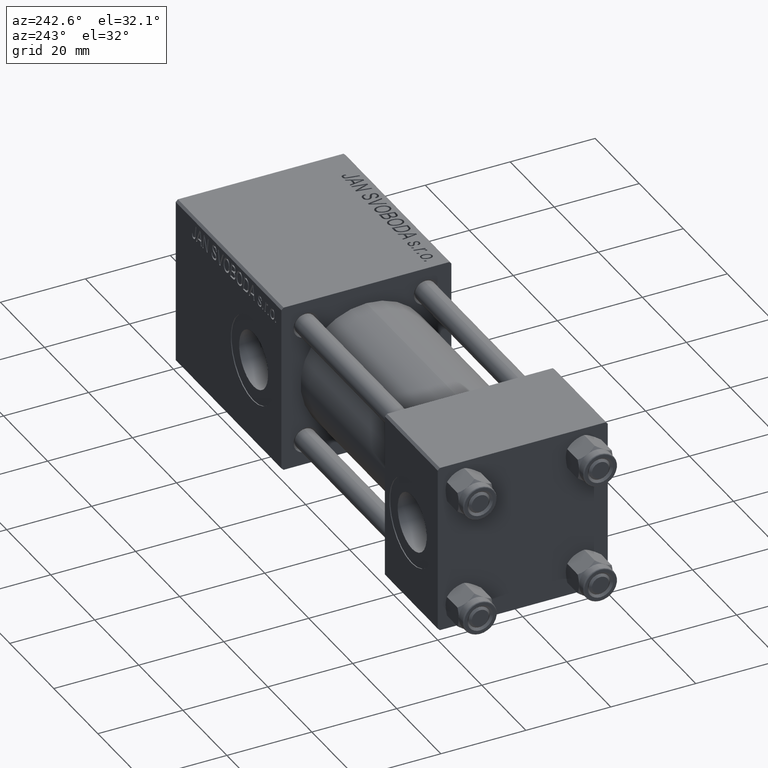
[diagram: clean part render]
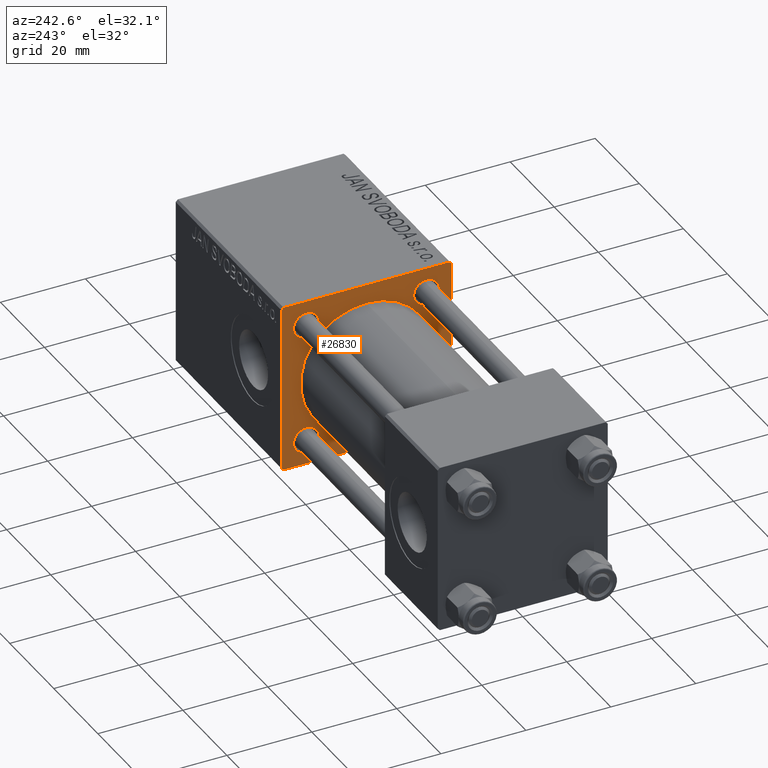
[diagram: same view with one face highlighted and labeled with its STEP entity id]
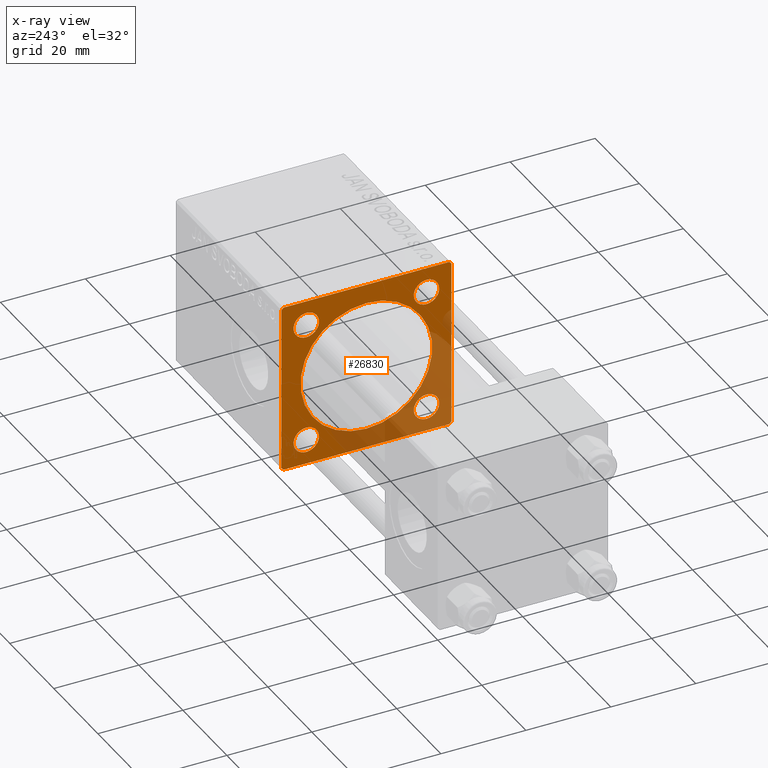
[diagram: x-ray of the same camera — body ghosted, the highlighted face saturated]
A machine part, auxiliary view. The second image highlights one B-rep face of the part: STEP entity #26830.
The next image is the same camera in x-ray: the body ghosted, the highlighted face saturated — about 32% of this face is hidden behind the body in this view.
In plain terms, the highlighted planar face has unit normal (-1, 0, 0).
Its self-contained STEP definition (entity closure, byte-faithful):
#245 = CARTESIAN_POINT ( 'NONE',  ( 71.00000000000001421, 14.15000000000000036, -11.14999999999999680 ) ) ;
#595 = CARTESIAN_POINT ( 'NONE',  ( 71.00000000000001421, -14.15000000000000036, -11.14999999999999680 ) ) ;
#1058 = CIRCLE ( 'NONE', #13248, 3.000000000000004441 ) ;
#1452 = CARTESIAN_POINT ( 'NONE',  ( 71.00000000000001421, -20.00000000000000000, -19.50000000000001066 ) ) ;
#1615 = CIRCLE ( 'NONE', #20325, 3.000000000000004441 ) ;
#1663 = VERTEX_POINT ( 'NONE', #39674 ) ;
#1784 = CARTESIAN_POINT ( 'NONE',  ( 71.00000000000001421, 19.99999999999999645, -20.00000000000000000 ) ) ;
#1997 = ORIENTED_EDGE ( 'NONE', *, *, #18133, .T. ) ;
#2181 = DIRECTION ( 'NONE',  ( -1.000000000000000000, 0.000000000000000000, -0.000000000000000000 ) ) ;
#2630 = AXIS2_PLACEMENT_3D ( 'NONE', #37027, #33974, #5997 ) ;
#2813 = VERTEX_POINT ( 'NONE', #16467 ) ;
#3227 = CARTESIAN_POINT ( 'NONE',  ( 71.00000000000001421, -7.038826752868131828E-16, -15.50000000000000000 ) ) ;
#3256 = AXIS2_PLACEMENT_3D ( 'NONE', #3717, #35001, #42118 ) ;
#3403 = AXIS2_PLACEMENT_3D ( 'NONE', #40737, #18108, #25751 ) ;
#3485 = CARTESIAN_POINT ( 'NONE',  ( 71.00000000000001421, 14.15000000000000036, 17.15000000000000568 ) ) ;
#3498 = VERTEX_POINT ( 'NONE', #45748 ) ;
#3518 = ORIENTED_EDGE ( 'NONE', *, *, #48919, .T. ) ;
#3633 = EDGE_CURVE ( 'NONE', #21033, #11726, #39462, .T. ) ;
#3664 = CARTESIAN_POINT ( 'NONE',  ( 71.00000000000001421, 19.99999999999999645, 20.00000000000000000 ) ) ;
#3717 = CARTESIAN_POINT ( 'NONE',  ( 71.00000000000001421, -2.602085213965210642E-15, 0.000000000000000000 ) ) ;
#3718 = VERTEX_POINT ( 'NONE', #3227 ) ;
#4088 = CARTESIAN_POINT ( 'NONE',  ( 71.00000000000001421, 19.74999999999971578, 19.75000000000026290 ) ) ;
#4093 = VECTOR ( 'NONE', #32819, 1000.000000000000000 ) ;
#4610 = VERTEX_POINT ( 'NONE', #29028 ) ;
#4685 = ORIENTED_EDGE ( 'NONE', *, *, #28994, .T. ) ;
#5900 = CIRCLE ( 'NONE', #2630, 3.000000000000004441 ) ;
#5997 = DIRECTION ( 'NONE',  ( 0.000000000000000000, 0.000000000000000000, 1.000000000000000000 ) ) ;
#6253 = FACE_BOUND ( 'NONE', #11671, .T. ) ;
#7206 = CARTESIAN_POINT ( 'NONE',  ( 71.00000000000001421, 19.99999999999999645, 20.00000000000000000 ) ) ;
#7416 = CIRCLE ( 'NONE', #31784, 3.000000000000004441 ) ;
#8467 = CARTESIAN_POINT ( 'NONE',  ( 71.00000000000001421, -19.74999999999973710, 19.75000000000028422 ) ) ;
#8661 = VERTEX_POINT ( 'NONE', #15104 ) ;
#8760 = VERTEX_POINT ( 'NONE', #595 ) ;
#8781 = EDGE_CURVE ( 'NONE', #20190, #1663, #31876, .T. ) ;
#9008 = CARTESIAN_POINT ( 'NONE',  ( 71.00000000000001421, -20.00000000000000355, 19.99999999999999645 ) ) ;
#9740 = CARTESIAN_POINT ( 'NONE',  ( 71.00000000000001421, -14.15000000000000036, -14.15000000000000036 ) ) ;
#9767 = EDGE_LOOP ( 'NONE', ( #31787, #11050 ) ) ;
#9803 = FACE_BOUND ( 'NONE', #11560, .T. ) ;
#11050 = ORIENTED_EDGE ( 'NONE', *, *, #26790, .T. ) ;
#11470 = CARTESIAN_POINT ( 'NONE',  ( 71.00000000000001421, 14.15000000000000036, 14.15000000000000036 ) ) ;
#11534 = DIRECTION ( 'NONE',  ( 0.000000000000000000, 0.000000000000000000, -1.000000000000000000 ) ) ;
#11560 = EDGE_LOOP ( 'NONE', ( #29894, #13029 ) ) ;
#11671 = EDGE_LOOP ( 'NONE', ( #21882, #27382 ) ) ;
#11726 = VERTEX_POINT ( 'NONE', #36706 ) ;
#13029 = ORIENTED_EDGE ( 'NONE', *, *, #31942, .T. ) ;
#13237 = DIRECTION ( 'NONE',  ( 0.000000000000000000, 0.000000000000000000, 1.000000000000000000 ) ) ;
#13248 = AXIS2_PLACEMENT_3D ( 'NONE', #18587, #37920, #30533 ) ;
#13574 = LINE ( 'NONE', #9008, #43225 ) ;
#13642 = DIRECTION ( 'NONE',  ( 0.000000000000000000, 0.000000000000000000, 1.000000000000000000 ) ) ;
#14131 = DIRECTION ( 'NONE',  ( -0.000000000000000000, 0.000000000000000000, 1.000000000000000000 ) ) ;
#14224 = EDGE_CURVE ( 'NONE', #18185, #4610, #37909, .T. ) ;
#14245 = LINE ( 'NONE', #1784, #4093 ) ;
#14502 = CARTESIAN_POINT ( 'NONE',  ( 71.00000000000001421, 19.74999999999999645, -19.74999999999999645 ) ) ;
#14999 = EDGE_CURVE ( 'NONE', #26615, #2813, #1615, .T. ) ;
#15104 = CARTESIAN_POINT ( 'NONE',  ( 71.00000000000001421, -2.602085213965210642E-15, 15.50000000000000000 ) ) ;
#16249 = CIRCLE ( 'NONE', #3256, 15.50000000000000000 ) ;
#16452 = ORIENTED_EDGE ( 'NONE', *, *, #14224, .T. ) ;
#16467 = CARTESIAN_POINT ( 'NONE',  ( 71.00000000000001421, -14.15000000000000036, 11.14999999999999503 ) ) ;
#16624 = DIRECTION ( 'NONE',  ( 1.000000000000000000, 0.000000000000000000, 0.000000000000000000 ) ) ;
#16648 = DIRECTION ( 'NONE',  ( 0.000000000000000000, 8.673617379884036705E-17, -1.000000000000000000 ) ) ;
#16736 = VERTEX_POINT ( 'NONE', #32504 ) ;
#16884 = EDGE_LOOP ( 'NONE', ( #18788, #39632, #30475, #33753, #38918, #30563, #48187, #16452 ) ) ;
#17377 = EDGE_CURVE ( 'NONE', #4610, #16736, #14245, .T. ) ;
#17878 = VECTOR ( 'NONE', #34590, 1000.000000000000114 ) ;
#17894 = DIRECTION ( 'NONE',  ( 0.000000000000000000, -1.000000000000000000, -8.673617379884035472E-17 ) ) ;
#18108 = DIRECTION ( 'NONE',  ( 1.000000000000000000, 0.000000000000000000, 0.000000000000000000 ) ) ;
#18133 = EDGE_CURVE ( 'NONE', #3718, #8661, #16249, .T. ) ;
#18185 = VERTEX_POINT ( 'NONE', #42370 ) ;
#18587 = CARTESIAN_POINT ( 'NONE',  ( 71.00000000000001421, 14.15000000000000036, -14.15000000000000036 ) ) ;
#18788 = ORIENTED_EDGE ( 'NONE', *, *, #17377, .T. ) ;
#19022 = EDGE_CURVE ( 'NONE', #2813, #26615, #34979, .T. ) ;
#19030 = VERTEX_POINT ( 'NONE', #3485 ) ;
#19601 = DIRECTION ( 'NONE',  ( 0.000000000000000000, 0.7071067811865574537, -0.7071067811865376918 ) ) ;
#19696 = CARTESIAN_POINT ( 'NONE',  ( 71.00000000000001421, 14.15000000000000036, 14.15000000000000036 ) ) ;
#20190 = VERTEX_POINT ( 'NONE', #48699 ) ;
#20325 = AXIS2_PLACEMENT_3D ( 'NONE', #45014, #20888, #13237 ) ;
#20888 = DIRECTION ( 'NONE',  ( 1.000000000000000000, 0.000000000000000000, 0.000000000000000000 ) ) ;
#21033 = VERTEX_POINT ( 'NONE', #245 ) ;
#21376 = EDGE_CURVE ( 'NONE', #19030, #33381, #7416, .T. ) ;
#21462 = CIRCLE ( 'NONE', #45016, 3.000000000000004441 ) ;
#21708 = DIRECTION ( 'NONE',  ( 0.000000000000000000, 0.000000000000000000, 1.000000000000000000 ) ) ;
#21882 = ORIENTED_EDGE ( 'NONE', *, *, #14999, .T. ) ;
#22022 = LINE ( 'NONE', #22274, #24888 ) ;
#22274 = CARTESIAN_POINT ( 'NONE',  ( 71.00000000000001421, -19.75000000000028066, -19.74999999999973355 ) ) ;
#24888 = VECTOR ( 'NONE', #37011, 999.9999999999998863 ) ;
#25596 = EDGE_CURVE ( 'NONE', #20190, #26081, #13574, .T. ) ;
#25751 = DIRECTION ( 'NONE',  ( 0.000000000000000000, 0.000000000000000000, -1.000000000000000000 ) ) ;
#26081 = VERTEX_POINT ( 'NONE', #1452 ) ;
#26378 = CARTESIAN_POINT ( 'NONE',  ( 71.00000000000001421, -14.15000000000000036, 14.15000000000000036 ) ) ;
#26615 = VERTEX_POINT ( 'NONE', #31479 ) ;
#26790 = EDGE_CURVE ( 'NONE', #49987, #8760, #5900, .T. ) ;
#26830 = ADVANCED_FACE ( 'NONE', ( #6253, #37793, #9803, #41598, #29654, #30164 ), #45148, .T. ) ;
#27382 = ORIENTED_EDGE ( 'NONE', *, *, #19022, .T. ) ;
#27557 = CARTESIAN_POINT ( 'NONE',  ( 71.00000000000001421, -14.15000000000000036, -17.15000000000000568 ) ) ;
#28674 = DIRECTION ( 'NONE',  ( 1.000000000000000000, 0.000000000000000000, 0.000000000000000000 ) ) ;
#28994 = EDGE_CURVE ( 'NONE', #8661, #3718, #29393, .T. ) ;
#29028 = CARTESIAN_POINT ( 'NONE',  ( 71.00000000000001421, 19.49999999999999645, -20.00000000000000000 ) ) ;
#29393 = CIRCLE ( 'NONE', #3403, 15.50000000000000000 ) ;
#29614 = EDGE_LOOP ( 'NONE', ( #40681, #3518 ) ) ;
#29654 = FACE_BOUND ( 'NONE', #41471, .T. ) ;
#29894 = ORIENTED_EDGE ( 'NONE', *, *, #3633, .T. ) ;
#29930 = CIRCLE ( 'NONE', #31572, 3.000000000000004441 ) ;
#30164 = FACE_OUTER_BOUND ( 'NONE', #16884, .T. ) ;
#30475 = ORIENTED_EDGE ( 'NONE', *, *, #25596, .F. ) ;
#30533 = DIRECTION ( 'NONE',  ( 0.000000000000000000, 0.000000000000000000, 1.000000000000000000 ) ) ;
#30563 = ORIENTED_EDGE ( 'NONE', *, *, #42785, .T. ) ;
#30798 = DIRECTION ( 'NONE',  ( 1.000000000000000000, 0.000000000000000000, 0.000000000000000000 ) ) ;
#31376 = LINE ( 'NONE', #3664, #38108 ) ;
#31479 = CARTESIAN_POINT ( 'NONE',  ( 71.00000000000001421, -14.15000000000000036, 17.15000000000000568 ) ) ;
#31572 = AXIS2_PLACEMENT_3D ( 'NONE', #11470, #30798, #34616 ) ;
#31784 = AXIS2_PLACEMENT_3D ( 'NONE', #19696, #46898, #43077 ) ;
#31787 = ORIENTED_EDGE ( 'NONE', *, *, #35484, .T. ) ;
#31876 = LINE ( 'NONE', #8467, #42053 ) ;
#31942 = EDGE_CURVE ( 'NONE', #11726, #21033, #1058, .T. ) ;
#32504 = CARTESIAN_POINT ( 'NONE',  ( 71.00000000000001421, -19.50000000000002487, -20.00000000000000000 ) ) ;
#32819 = DIRECTION ( 'NONE',  ( 0.000000000000000000, -1.000000000000000000, 0.000000000000000000 ) ) ;
#33381 = VERTEX_POINT ( 'NONE', #40349 ) ;
#33753 = ORIENTED_EDGE ( 'NONE', *, *, #8781, .T. ) ;
#33974 = DIRECTION ( 'NONE',  ( 1.000000000000000000, 0.000000000000000000, 0.000000000000000000 ) ) ;
#34590 = DIRECTION ( 'NONE',  ( -0.000000000000000000, -0.7071067811865474617, -0.7071067811865474617 ) ) ;
#34616 = DIRECTION ( 'NONE',  ( 0.000000000000000000, 0.000000000000000000, 1.000000000000000000 ) ) ;
#34979 = CIRCLE ( 'NONE', #39049, 3.000000000000004441 ) ;
#35001 = DIRECTION ( 'NONE',  ( 1.000000000000000000, 0.000000000000000000, 0.000000000000000000 ) ) ;
#35456 = VECTOR ( 'NONE', #17894, 1000.000000000000000 ) ;
#35484 = EDGE_CURVE ( 'NONE', #8760, #49987, #21462, .T. ) ;
#36201 = VECTOR ( 'NONE', #19601, 999.9999999999998863 ) ;
#36548 = CARTESIAN_POINT ( 'NONE',  ( 71.00000000000001421, 14.15000000000000036, -14.15000000000000036 ) ) ;
#36706 = CARTESIAN_POINT ( 'NONE',  ( 71.00000000000001421, 14.15000000000000036, -17.15000000000000568 ) ) ;
#37011 = DIRECTION ( 'NONE',  ( 0.000000000000000000, -0.7071067811865376918, 0.7071067811865574537 ) ) ;
#37027 = CARTESIAN_POINT ( 'NONE',  ( 71.00000000000001421, -14.15000000000000036, -14.15000000000000036 ) ) ;
#37793 = FACE_BOUND ( 'NONE', #29614, .T. ) ;
#37909 = LINE ( 'NONE', #14502, #17878 ) ;
#37920 = DIRECTION ( 'NONE',  ( 1.000000000000000000, 0.000000000000000000, 0.000000000000000000 ) ) ;
#38108 = VECTOR ( 'NONE', #11534, 1000.000000000000000 ) ;
#38654 = AXIS2_PLACEMENT_3D ( 'NONE', #36548, #28674, #13642 ) ;
#38918 = ORIENTED_EDGE ( 'NONE', *, *, #43524, .F. ) ;
#39019 = DIRECTION ( 'NONE',  ( -0.000000000000000000, 0.7071067811865573427, 0.7071067811865376918 ) ) ;
#39049 = AXIS2_PLACEMENT_3D ( 'NONE', #26378, #41882, #41369 ) ;
#39462 = CIRCLE ( 'NONE', #38654, 3.000000000000004441 ) ;
#39632 = ORIENTED_EDGE ( 'NONE', *, *, #39701, .T. ) ;
#39674 = CARTESIAN_POINT ( 'NONE',  ( 71.00000000000001421, -19.50000000000001776, 19.99999999999999645 ) ) ;
#39701 = EDGE_CURVE ( 'NONE', #16736, #26081, #22022, .T. ) ;
#39994 = AXIS2_PLACEMENT_3D ( 'NONE', #41342, #2181, #14131 ) ;
#40349 = CARTESIAN_POINT ( 'NONE',  ( 71.00000000000001421, 14.15000000000000036, 11.14999999999999680 ) ) ;
#40681 = ORIENTED_EDGE ( 'NONE', *, *, #21376, .T. ) ;
#40737 = CARTESIAN_POINT ( 'NONE',  ( 71.00000000000001421, -2.602085213965210642E-15, 0.000000000000000000 ) ) ;
#40769 = VERTEX_POINT ( 'NONE', #49249 ) ;
#41342 = CARTESIAN_POINT ( 'NONE',  ( 71.00000000000001421, 0.000000000000000000, 0.000000000000000000 ) ) ;
#41369 = DIRECTION ( 'NONE',  ( 0.000000000000000000, 0.000000000000000000, 1.000000000000000000 ) ) ;
#41471 = EDGE_LOOP ( 'NONE', ( #4685, #1997 ) ) ;
#41598 = FACE_BOUND ( 'NONE', #9767, .T. ) ;
#41797 = LINE ( 'NONE', #7206, #35456 ) ;
#41882 = DIRECTION ( 'NONE',  ( 1.000000000000000000, 0.000000000000000000, 0.000000000000000000 ) ) ;
#42053 = VECTOR ( 'NONE', #39019, 1000.000000000000114 ) ;
#42118 = DIRECTION ( 'NONE',  ( 0.000000000000000000, 0.000000000000000000, -1.000000000000000000 ) ) ;
#42370 = CARTESIAN_POINT ( 'NONE',  ( 71.00000000000001421, 19.99999999999999645, -19.50000000000000000 ) ) ;
#42785 = EDGE_CURVE ( 'NONE', #3498, #40769, #47053, .T. ) ;
#43077 = DIRECTION ( 'NONE',  ( 0.000000000000000000, 0.000000000000000000, 1.000000000000000000 ) ) ;
#43225 = VECTOR ( 'NONE', #16648, 1000.000000000000000 ) ;
#43524 = EDGE_CURVE ( 'NONE', #3498, #1663, #41797, .T. ) ;
#45014 = CARTESIAN_POINT ( 'NONE',  ( 71.00000000000001421, -14.15000000000000036, 14.15000000000000036 ) ) ;
#45016 = AXIS2_PLACEMENT_3D ( 'NONE', #9740, #16624, #21708 ) ;
#45148 = PLANE ( 'NONE',  #39994 ) ;
#45748 = CARTESIAN_POINT ( 'NONE',  ( 71.00000000000001421, 19.49999999999996803, 20.00000000000000000 ) ) ;
#46898 = DIRECTION ( 'NONE',  ( 1.000000000000000000, 0.000000000000000000, 0.000000000000000000 ) ) ;
#47053 = LINE ( 'NONE', #4088, #36201 ) ;
#48187 = ORIENTED_EDGE ( 'NONE', *, *, #49947, .T. ) ;
#48699 = CARTESIAN_POINT ( 'NONE',  ( 71.00000000000001421, -20.00000000000000355, 19.50000000000002487 ) ) ;
#48919 = EDGE_CURVE ( 'NONE', #33381, #19030, #29930, .T. ) ;
#49249 = CARTESIAN_POINT ( 'NONE',  ( 71.00000000000001421, 19.99999999999999645, 19.49999999999998579 ) ) ;
#49947 = EDGE_CURVE ( 'NONE', #40769, #18185, #31376, .T. ) ;
#49987 = VERTEX_POINT ( 'NONE', #27557 ) ;